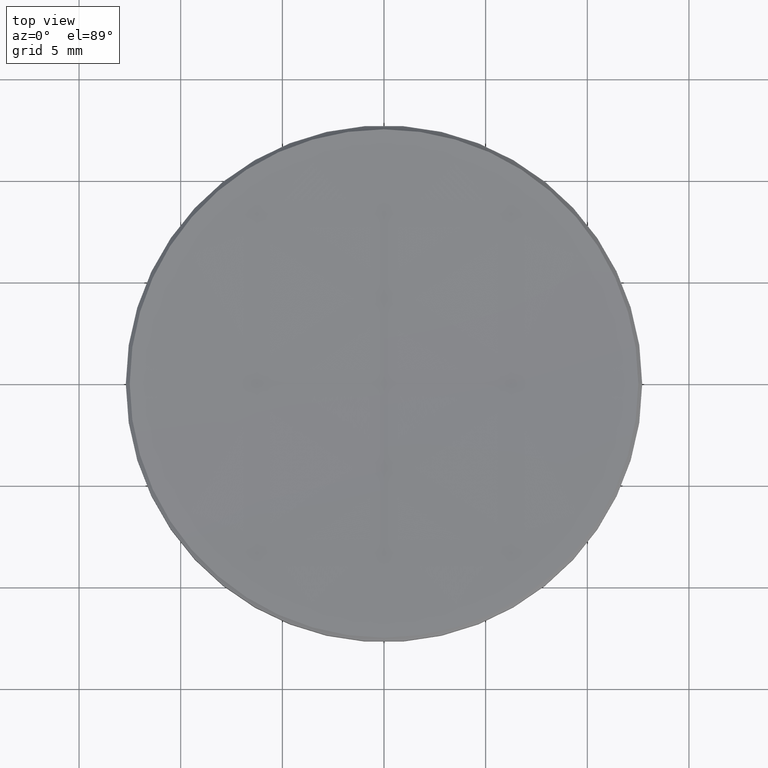
[diagram: clean part render]
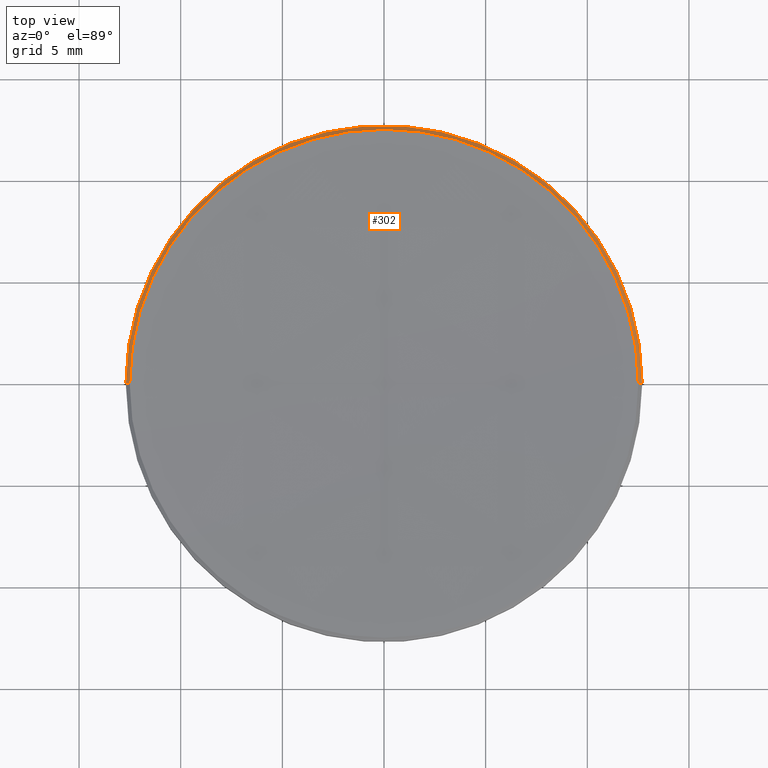
[diagram: same view with one face highlighted and labeled with its STEP entity id]
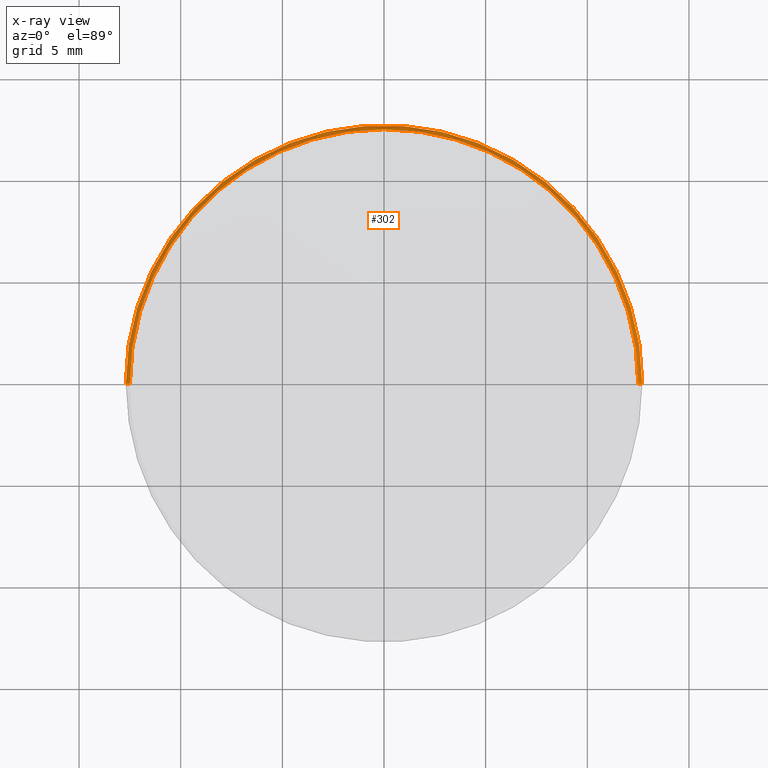
[diagram: x-ray of the same camera — body ghosted, the highlighted face saturated]
A machine part, top view. The second image highlights one B-rep face of the part: STEP entity #302.
The next image is the same camera in x-ray: the body ghosted, the highlighted face saturated — about 0% of this face is hidden behind the body in this view.
In plain terms, the highlighted conical surface has half-angle 45 deg.
Its self-contained STEP definition (entity closure, byte-faithful):
#9 = DIRECTION ( 'NONE',  ( -0.000000000000000000, -0.000000000000000000, 1.000000000000000000 ) ) ;
#35 = EDGE_CURVE ( 'NONE', #38, #244, #226, .T. ) ;
#38 = VERTEX_POINT ( 'NONE', #48 ) ;
#39 = CIRCLE ( 'NONE', #84, 12.50838802109486103 ) ;
#43 = EDGE_CURVE ( 'NONE', #244, #71, #294, .T. ) ;
#48 = CARTESIAN_POINT ( 'NONE',  ( -12.50838802109486103, 0.000000000000000000, 5.991611978905075908 ) ) ;
#53 = CARTESIAN_POINT ( 'NONE',  ( 0.000000000000000000, 12.50838802109430148, 5.991611978905075908 ) ) ;
#54 = DIRECTION ( 'NONE',  ( 0.7071067811865635599, 8.659560562355128841E-17, -0.7071067811865314745 ) ) ;
#71 = VERTEX_POINT ( 'NONE', #124 ) ;
#73 = AXIS2_PLACEMENT_3D ( 'NONE', #189, #9, #291 ) ;
#81 = CARTESIAN_POINT ( 'NONE',  ( 0.000000000000000000, 0.000000000000000000, 5.991611978905075908 ) ) ;
#84 = AXIS2_PLACEMENT_3D ( 'NONE', #81, #229, #175 ) ;
#92 = ORIENTED_EDGE ( 'NONE', *, *, #315, .F. ) ;
#103 = CARTESIAN_POINT ( 'NONE',  ( 0.000000000000000000, 0.000000000000000000, 5.991611978905131863 ) ) ;
#109 = VECTOR ( 'NONE', #126, 1000.000000000000000 ) ;
#114 = ORIENTED_EDGE ( 'NONE', *, *, #219, .F. ) ;
#124 = CARTESIAN_POINT ( 'NONE',  ( 12.69999999999999929, 1.555301434917138433E-15, 5.800000000000027356 ) ) ;
#125 = FACE_OUTER_BOUND ( 'NONE', #145, .T. ) ;
#126 = DIRECTION ( 'NONE',  ( -0.7071067811865635599, 0.000000000000000000, -0.7071067811865314745 ) ) ;
#134 = CIRCLE ( 'NONE', #73, 12.50838802109486103 ) ;
#145 = EDGE_LOOP ( 'NONE', ( #114, #266, #149, #316, #92 ) ) ;
#146 = DIRECTION ( 'NONE',  ( -1.000000000000000000, 0.000000000000000000, 0.000000000000000000 ) ) ;
#147 = DIRECTION ( 'NONE',  ( 1.000000000000000000, 0.000000000000000000, 0.000000000000000000 ) ) ;
#149 = ORIENTED_EDGE ( 'NONE', *, *, #43, .F. ) ;
#154 = CARTESIAN_POINT ( 'NONE',  ( -12.69999999999999929, 0.000000000000000000, 5.800000000000027356 ) ) ;
#175 = DIRECTION ( 'NONE',  ( 1.000000000000000000, 0.000000000000000000, 0.000000000000000000 ) ) ;
#180 = VECTOR ( 'NONE', #54, 1000.000000000000000 ) ;
#189 = CARTESIAN_POINT ( 'NONE',  ( 0.000000000000000000, 0.000000000000000000, 5.991611978905075908 ) ) ;
#193 = CARTESIAN_POINT ( 'NONE',  ( -12.50838802109488590, 0.000000000000000000, 5.991611978905131863 ) ) ;
#198 = DIRECTION ( 'NONE',  ( 0.000000000000000000, 0.000000000000000000, -1.000000000000000000 ) ) ;
#202 = LINE ( 'NONE', #256, #180 ) ;
#205 = CONICAL_SURFACE ( 'NONE', #326, 12.50838802109488590, 0.7853981633974710386 ) ;
#219 = EDGE_CURVE ( 'NONE', #321, #243, #134, .T. ) ;
#226 = LINE ( 'NONE', #193, #109 ) ;
#229 = DIRECTION ( 'NONE',  ( -0.000000000000000000, -0.000000000000000000, 1.000000000000000000 ) ) ;
#243 = VERTEX_POINT ( 'NONE', #53 ) ;
#244 = VERTEX_POINT ( 'NONE', #154 ) ;
#256 = CARTESIAN_POINT ( 'NONE',  ( 12.50838802109488590, 1.531835735252694865E-15, 5.991611978905131863 ) ) ;
#266 = ORIENTED_EDGE ( 'NONE', *, *, #332, .T. ) ;
#274 = DIRECTION ( 'NONE',  ( 0.000000000000000000, 0.000000000000000000, -1.000000000000000000 ) ) ;
#279 = CARTESIAN_POINT ( 'NONE',  ( 12.50838802109486103, 1.543568585084915170E-15, 5.991611978905075908 ) ) ;
#291 = DIRECTION ( 'NONE',  ( 1.000000000000000000, 0.000000000000000000, 0.000000000000000000 ) ) ;
#294 = CIRCLE ( 'NONE', #324, 12.69999999999999929 ) ;
#302 = ADVANCED_FACE ( 'NONE', ( #125 ), #205, .T. ) ;
#315 = EDGE_CURVE ( 'NONE', #243, #38, #39, .T. ) ;
#316 = ORIENTED_EDGE ( 'NONE', *, *, #35, .F. ) ;
#321 = VERTEX_POINT ( 'NONE', #279 ) ;
#324 = AXIS2_PLACEMENT_3D ( 'NONE', #327, #274, #147 ) ;
#326 = AXIS2_PLACEMENT_3D ( 'NONE', #103, #198, #146 ) ;
#327 = CARTESIAN_POINT ( 'NONE',  ( 0.000000000000000000, 0.000000000000000000, 5.800000000000027356 ) ) ;
#332 = EDGE_CURVE ( 'NONE', #321, #71, #202, .T. ) ;